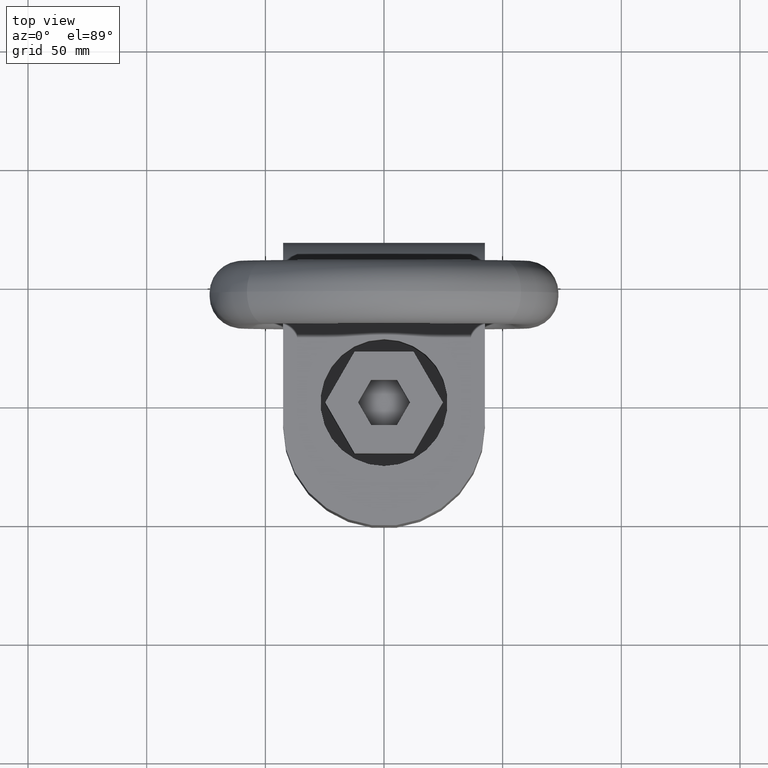
[diagram: clean part render]
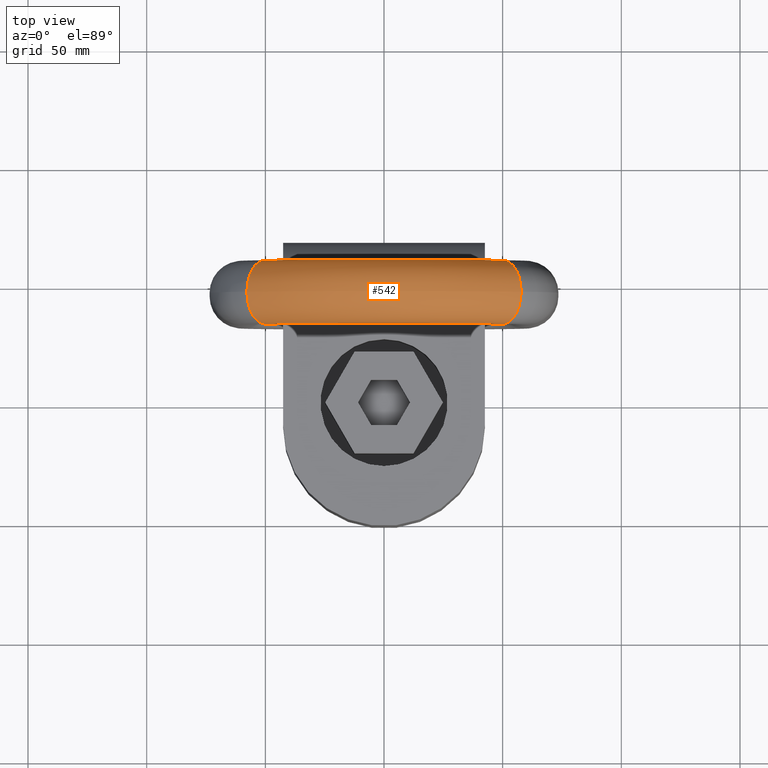
[diagram: same view with one face highlighted and labeled with its STEP entity id]
A machine part, top view. The second image highlights one B-rep face of the part: STEP entity #542.
In plain terms, the highlighted toroidal blend (fillet) surface has major radius 87 mm and minor (blend) radius 13.5 mm.
Its self-contained STEP definition (entity closure, byte-faithful):
#242=TOROIDAL_SURFACE('',#2597,87.,13.5);
#542=ADVANCED_FACE('',(#627,#628),#242,.T.);
#627=FACE_BOUND('',#791,.T.);
#628=FACE_BOUND('',#792,.T.);
#791=EDGE_LOOP('',(#1757));
#792=EDGE_LOOP('',(#1758));
#1138=CIRCLE('',#2594,13.5);
#1139=CIRCLE('',#2596,13.5);
#1757=ORIENTED_EDGE('',*,*,#2285,.T.);
#1758=ORIENTED_EDGE('',*,*,#2284,.F.);
#1973=VERTEX_POINT('',#5102);
#1974=VERTEX_POINT('',#5105);
#2284=EDGE_CURVE('',#1973,#1973,#1138,.T.);
#2285=EDGE_CURVE('',#1974,#1974,#1139,.T.);
#2594=AXIS2_PLACEMENT_3D('',#5101,#3042,#3043);
#2596=AXIS2_PLACEMENT_3D('',#5104,#3046,#3047);
#2597=AXIS2_PLACEMENT_3D('',#5106,#3048,#3049);
#3042=DIRECTION('',(-0.818291720111281,0.,-0.574803149606299));
#3043=DIRECTION('',(-0.574803149606299,0.,0.818291720111281));
#3046=DIRECTION('',(-0.818291720111281,0.,0.574803149606299));
#3047=DIRECTION('',(0.574803149606299,0.,0.818291720111281));
#3048=DIRECTION('',(0.,-1.,0.));
#3049=DIRECTION('',(0.,0.,-1.));
#5101=CARTESIAN_POINT('',(-50.007874015748,45.,150.691379649681));
#5102=CARTESIAN_POINT('',(-57.767716535433,45.,161.738317871184));
#5104=CARTESIAN_POINT('',(50.007874015748,45.,150.691379649681));
#5105=CARTESIAN_POINT('',(57.7677165354331,45.,161.738317871184));
#5106=CARTESIAN_POINT('',(0.,45.,79.5));